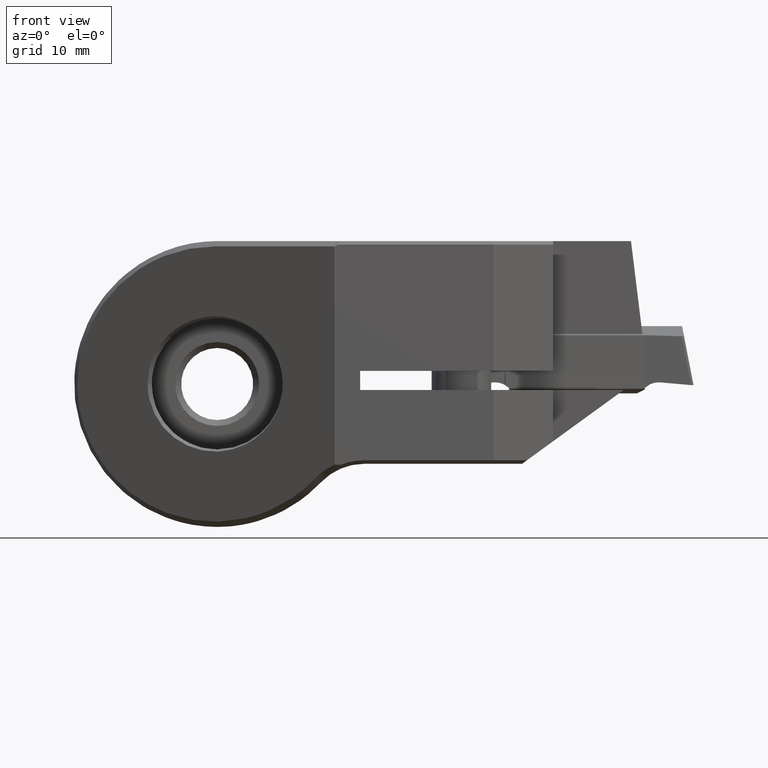
[diagram: clean part render]
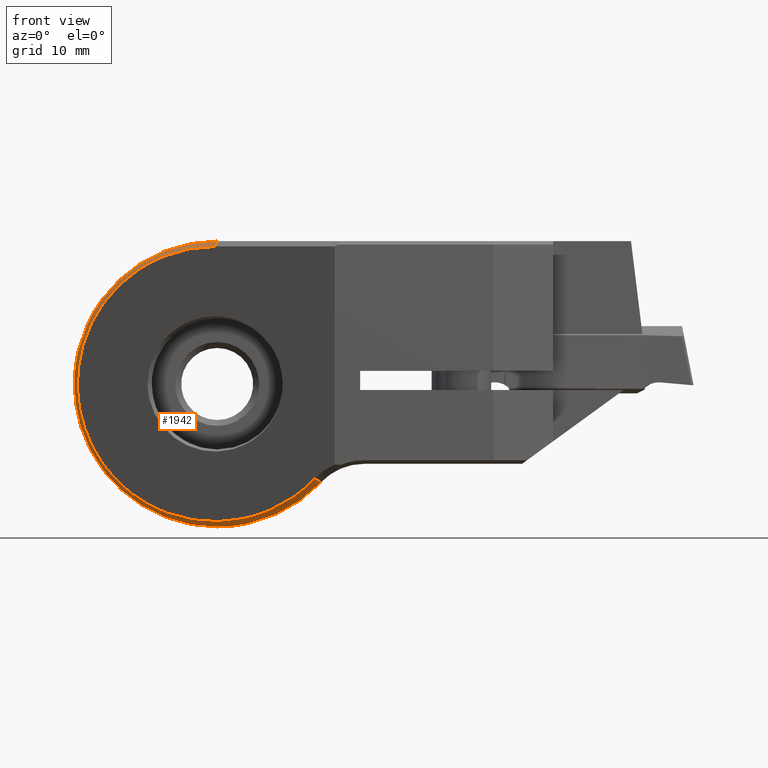
[diagram: same view with one face highlighted and labeled with its STEP entity id]
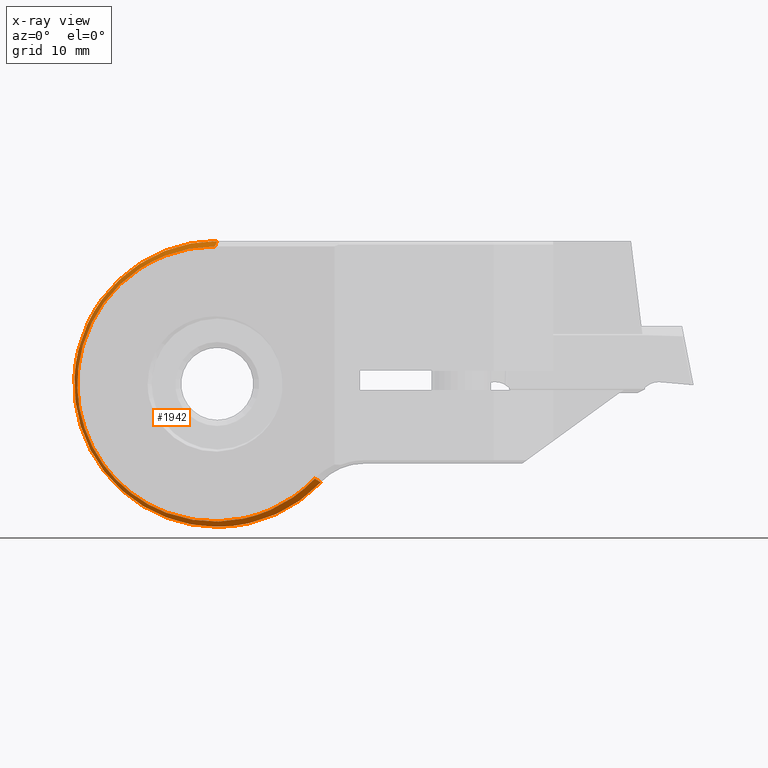
[diagram: x-ray of the same camera — body ghosted, the highlighted face saturated]
A machine part, front view. The second image highlights one B-rep face of the part: STEP entity #1942.
The next image is the same camera in x-ray: the body ghosted, the highlighted face saturated — about 0% of this face is hidden behind the body in this view.
In plain terms, the highlighted face is a freeform B-spline surface patch.
Its self-contained STEP definition (entity closure, byte-faithful):
#838=EDGE_CURVE('NONE',#1914,#1554,#2387,.T.);
#1190=VERTEX_POINT('NONE',#2775);
#1314=VERTEX_POINT('NONE',#2906);
#1554=VERTEX_POINT('NONE',#3178);
#1628=EDGE_CURVE('NONE',#2036,#1914,#3254,.T.);
#1754=EDGE_CURVE('NONE',#1190,#2036,#3388,.T.);
#1760=EDGE_CURVE('NONE',#2284,#1314,#3394,.T.);
#1914=VERTEX_POINT('',#3567);
#1942=ADVANCED_FACE('NONE',(#3598),#3599,.T.);
#2036=VERTEX_POINT('NONE',#3703);
#2142=EDGE_CURVE('NONE',#1314,#1190,#3822,.T.);
#2150=EDGE_CURVE('NONE',#2284,#1554,#3830,.F.);
#2284=VERTEX_POINT('NONE',#3980);
#2387=B_SPLINE_CURVE_WITH_KNOTS('',3,(#4120,#4121,#4122,#4123,#4124,#4125,#4126,#4127,#4128,#4129,#4130,#4131,#4132,#4133,#4134,#4135,#4136,#4137,#4138,#4139,#4140,#4141,#4142,#4143,#4144,#4145,#4146,#4147,#4148,#4149,#4150,#4151,#4152,#4153,#4154,#4155,#4156,#4157,#4158,#4159),.UNSPECIFIED.,.F.,.F.,(4,2,2,2,2,2,2,2,2,2,2,2,2,2,2,2,2,2,2,4),(-51.1107395327613,-46.6343419368662,-42.4507812472294,-38.263184287832,-32.279166348962,-30.0434360503467,-24.5468840983179,-22.4867814567998,-18.7622350558625,-15.9694199907063,-10.3311747622469,-8.94288867909548,-2.8554343392998,-0.548687361915619,-0.490720992001181,-0.428060672749908,-0.325750287488978,-0.25136645756349,-0.139472428338021,-0.0),.UNSPECIFIED.);
#2775=CARTESIAN_POINT('',(8.70585055638072,-21.0226959589248,-8.25882352941177));
#2906=CARTESIAN_POINT('',(8.19215865515161,-21.4282012415692,-7.95088945727988));
#3178=CARTESIAN_POINT('',(0.0,-17.1144554241358,12.0));
#3254=B_SPLINE_CURVE_WITH_KNOTS('',3,(#5647,#5648,#5649,#5650,#5651,#5652,#5653,#5654,#5655,#5656,#5657,#5658,#5659,#5660,#5661,#5662,#5663,#5664,#5665,#5666,#5667,#5668,#5669,#5670,#5671,#5672,#5673,#5674,#5675,#5676,#5677,#5678,#5679,#5680,#5681,#5682,#5683,#5684,#5685,#5686),.UNSPECIFIED.,.F.,.F.,(4,2,2,2,2,2,2,2,2,2,2,2,2,2,2,2,2,2,2,4),(-51.1107395327613,-46.6343419368662,-42.4507812472294,-38.263184287832,-32.279166348962,-30.0434360503467,-24.5468840983179,-22.4867814567998,-18.7622350558625,-15.9694199907063,-10.3311747622469,-8.94288867909548,-2.8554343392998,-0.548687361915619,-0.490720992001181,-0.428060672749908,-0.325750287488978,-0.25136645756349,-0.139472428338021,-0.0),.UNSPECIFIED.);
#3388=B_SPLINE_CURVE_WITH_KNOTS('',3,(#5917,#5918,#5919,#5920,#5921,#5922,#5923,#5924,#5925,#5926,#5927,#5928,#5929,#5930,#5931,#5932,#5933,#5934,#5935,#5936,#5937,#5938,#5939,#5940,#5941,#5942),.UNSPECIFIED.,.F.,.F.,(4,2,2,2,2,2,2,2,2,2,2,2,4),(-12.2684422680615,-12.1450642113202,-11.9696358276408,-11.8871228371023,-11.7908012352102,-11.5960268058757,-11.2848208732924,-10.5858842707867,-9.06837693916272,-8.06810803531795,-5.38891703570082,-2.6467959772772,-0.0),.UNSPECIFIED.);
#3394=B_SPLINE_CURVE_WITH_KNOTS('',3,(#5953,#5954,#5955,#5956,#5957,#5958,#5959,#5960,#5961,#5962,#5963,#5964,#5965,#5966,#5967,#5968,#5969,#5970,#5971,#5972,#5973,#5974,#5975),.UNSPECIFIED.,.F.,.F.,(4,1,2,2,2,2,2,2,2,2,2,4),(0.0,0.0624999999999999,0.09375,0.125,0.25,0.375,0.5,0.625,0.75,0.8125,0.875,1.0),.UNSPECIFIED.);
#3567=CARTESIAN_POINT('',(-2.78318275323868E-013,-17.1147971543016,-12.0));
#3598=FACE_OUTER_BOUND('',#6263,.T.);
#3599=B_SPLINE_SURFACE_WITH_KNOTS('',1,3,((#6264,#6265,#6266,#6267,#6268,#6269,#6270,#6271,#6272,#6273,#6274,#6275,#6276,#6277,#6278,#6279,#6280,#6281,#6282,#6283,#6284,#6285,#6286,#6287),(#6288,#6289,#6290,#6291,#6292,#6293,#6294,#6295,#6296,#6297,#6298,#6299,#6300,#6301,#6302,#6303,#6304,#6305,#6306,#6307,#6308,#6309,#6310,#6311),(#6312,#6313,#6314,#6315,#6316,#6317,#6318,#6319,#6320,#6321,#6322,#6323,#6324,#6325,#6326,#6327,#6328,#6329,#6330,#6331,#6332,#6333,#6334,#6335)),.UNSPECIFIED.,.F.,.F.,.F.,(2,1,2),(4,3,2,2,2,2,2,2,2,3,4),(-0.142235075234763,0.0,1.0),(3.86111309779303,3.90064644963641,4.39481334767867,4.88898024572093,5.38314714376319,5.87731404180544,6.3714809398477,6.86564783788996,7.35981473593222,7.85398163397448,7.89351498581786),.UNSPECIFIED.);
#3703=CARTESIAN_POINT('',(0.000127132625230869,-17.1148540818176,-11.9999999993266));
#3822=B_SPLINE_CURVE_WITH_KNOTS('',1,(#6734,#6735),.UNSPECIFIED.,.F.,.F.,(2,2),(3.41393580072236E-015,1.00000000000001),.UNSPECIFIED.);
#3830=B_SPLINE_CURVE_WITH_KNOTS('',1,(#6747,#6748),.UNSPECIFIED.,.F.,.F.,(2,2),(2.74780198594726E-015,1.0),.UNSPECIFIED.);
#3980=CARTESIAN_POINT('',(-0.189090218719426,-17.5199607067802,11.5525744251075));
#4120=CARTESIAN_POINT('',(1.67317886542639,-17.8648540818176,-11.8827805030763));
#4121=CARTESIAN_POINT('',(0.60791521709089,-17.3866432334027,-12.0327770987418));
#4122=CARTESIAN_POINT('',(-0.472663882641415,-16.9037669192122,-12.03887021179));
#4123=CARTESIAN_POINT('',(-2.5370940932108,-15.9776749332199,-11.771764214386));
#4124=CARTESIAN_POINT('',(-3.5196883202289,-15.5336469013866,-11.5171405152281));
#4125=CARTESIAN_POINT('',(-5.40726804069047,-14.6847557078922,-10.7608632349182));
#4126=CARTESIAN_POINT('',(-6.30827346872618,-14.2818293955087,-10.2606549354934));
#4127=CARTESIAN_POINT('',(-8.33247774144306,-13.3745462164915,-8.76160309023047));
#4128=CARTESIAN_POINT('',(-9.37198452895437,-12.9043929519191,-7.65002585506647));
#4129=CARTESIAN_POINT('',(-10.4874064357695,-12.4055164180473,-5.86031718227874));
#4130=CARTESIAN_POINT('',(-10.7571062443139,-12.2852696908241,-5.3498718678732));
#4131=CARTESIAN_POINT('',(-11.5626708495358,-11.9239336929206,-3.51259323059222));
#4132=CARTESIAN_POINT('',(-11.9023215892027,-11.7685540900949,-2.10636342081118));
#4133=CARTESIAN_POINT('',(-12.0117356565118,-11.7212966543418,-0.116134718561009));
#4134=CARTESIAN_POINT('',(-12.0046766299932,-11.725212648334,0.427521612539464));
#4135=CARTESIAN_POINT('',(-11.8815272753057,-11.7807286759043,1.94773702907781));
#4136=CARTESIAN_POINT('',(-11.6830733050267,-11.8678076682886,2.90760589723396));
#4137=CARTESIAN_POINT('',(-11.1391184659755,-12.1118076393341,4.52252949042691));
#4138=CARTESIAN_POINT('',(-10.845107154128,-12.2446283085182,5.18681136631241));
#4139=CARTESIAN_POINT('',(-9.79046987814872,-12.7201698232361,7.08967327614993));
#4140=CARTESIAN_POINT('',(-8.82144983387422,-13.151606914507,8.292207594673));
#4141=CARTESIAN_POINT('',(-7.26949305856204,-13.8495061711559,9.55566899606728));
#4142=CARTESIAN_POINT('',(-6.95205037667618,-13.9924387505807,9.78890685485003));
#4143=CARTESIAN_POINT('',(-5.19183390659383,-14.7847584958933,10.9544556959212));
#4144=CARTESIAN_POINT('',(-3.58841057142052,-15.5016793502419,11.574004337243));
#4145=CARTESIAN_POINT('',(-1.29705423676789,-16.5321919076733,11.9467412586936));
#4146=CARTESIAN_POINT('',(-0.660697915006315,-16.818576673568,11.9987157233126));
#4147=CARTESIAN_POINT('',(-0.0077469115488665,-17.1109868333584,12.0000081738703));
#4148=CARTESIAN_POINT('',(0.00900119487446541,-17.1184753945949,12.0000095585553));
#4149=CARTESIAN_POINT('',(0.0456657085058819,-17.1349818027315,11.9999282239731));
#4150=CARTESIAN_POINT('',(0.0646925049475257,-17.1435974565768,11.9998406737465));
#4151=CARTESIAN_POINT('',(0.114735921870256,-17.1663891066513,11.9994916109906));
#4152=CARTESIAN_POINT('',(0.14572019097188,-17.1806334396734,11.9991550804972));
#4153=CARTESIAN_POINT('',(0.19914168476607,-17.2054226943172,11.9983685748938));
#4154=CARTESIAN_POINT('',(0.221602942630407,-17.2159159084314,11.9979746454178));
#4155=CARTESIAN_POINT('',(0.277781910500246,-17.2423376811023,11.9968319342571));
#4156=CARTESIAN_POINT('',(0.311463188188248,-17.2583383097533,11.9960044038384));
#4157=CARTESIAN_POINT('',(0.386980613931078,-17.2945731465951,11.9938318806906));
#4158=CARTESIAN_POINT('',(0.428778642029004,-17.3148778488456,11.9924096780405));
#4159=CARTESIAN_POINT('',(0.47047197118032,-17.3353811545105,11.9907737917256));
#5647=CARTESIAN_POINT('',(1.67317886542639,-17.8648540818176,-11.8827805030763));
#5648=CARTESIAN_POINT('',(0.60791521709089,-17.3866432334027,-12.0327770987418));
#5649=CARTESIAN_POINT('',(-0.472663882641415,-16.9037669192122,-12.03887021179));
#5650=CARTESIAN_POINT('',(-2.5370940932108,-15.9776749332199,-11.771764214386));
#5651=CARTESIAN_POINT('',(-3.5196883202289,-15.5336469013866,-11.5171405152281));
#5652=CARTESIAN_POINT('',(-5.40726804069047,-14.6847557078922,-10.7608632349182));
#5653=CARTESIAN_POINT('',(-6.30827346872618,-14.2818293955087,-10.2606549354934));
#5654=CARTESIAN_POINT('',(-8.33247774144306,-13.3745462164915,-8.76160309023047));
#5655=CARTESIAN_POINT('',(-9.37198452895437,-12.9043929519191,-7.65002585506647));
#5656=CARTESIAN_POINT('',(-10.4874064357695,-12.4055164180473,-5.86031718227874));
#5657=CARTESIAN_POINT('',(-10.7571062443139,-12.2852696908241,-5.3498718678732));
#5658=CARTESIAN_POINT('',(-11.5626708495358,-11.9239336929206,-3.51259323059222));
#5659=CARTESIAN_POINT('',(-11.9023215892027,-11.7685540900949,-2.10636342081118));
#5660=CARTESIAN_POINT('',(-12.0117356565118,-11.7212966543418,-0.116134718561009));
#5661=CARTESIAN_POINT('',(-12.0046766299932,-11.725212648334,0.427521612539464));
#5662=CARTESIAN_POINT('',(-11.8815272753057,-11.7807286759043,1.94773702907781));
#5663=CARTESIAN_POINT('',(-11.6830733050267,-11.8678076682886,2.90760589723396));
#5664=CARTESIAN_POINT('',(-11.1391184659755,-12.1118076393341,4.52252949042691));
#5665=CARTESIAN_POINT('',(-10.845107154128,-12.2446283085182,5.18681136631241));
#5666=CARTESIAN_POINT('',(-9.79046987814872,-12.7201698232361,7.08967327614993));
#5667=CARTESIAN_POINT('',(-8.82144983387422,-13.151606914507,8.292207594673));
#5668=CARTESIAN_POINT('',(-7.26949305856204,-13.8495061711559,9.55566899606728));
#5669=CARTESIAN_POINT('',(-6.95205037667618,-13.9924387505807,9.78890685485003));
#5670=CARTESIAN_POINT('',(-5.19183390659383,-14.7847584958933,10.9544556959212));
#5671=CARTESIAN_POINT('',(-3.58841057142052,-15.5016793502419,11.574004337243));
#5672=CARTESIAN_POINT('',(-1.29705423676789,-16.5321919076733,11.9467412586936));
#5673=CARTESIAN_POINT('',(-0.660697915006315,-16.818576673568,11.9987157233126));
#5674=CARTESIAN_POINT('',(-0.0077469115488665,-17.1109868333584,12.0000081738703));
#5675=CARTESIAN_POINT('',(0.00900119487446541,-17.1184753945949,12.0000095585553));
#5676=CARTESIAN_POINT('',(0.0456657085058819,-17.1349818027315,11.9999282239731));
#5677=CARTESIAN_POINT('',(0.0646925049475257,-17.1435974565768,11.9998406737465));
#5678=CARTESIAN_POINT('',(0.114735921870256,-17.1663891066513,11.9994916109906));
#5679=CARTESIAN_POINT('',(0.14572019097188,-17.1806334396734,11.9991550804972));
#5680=CARTESIAN_POINT('',(0.19914168476607,-17.2054226943172,11.9983685748938));
#5681=CARTESIAN_POINT('',(0.221602942630407,-17.2159159084314,11.9979746454178));
#5682=CARTESIAN_POINT('',(0.277781910500246,-17.2423376811023,11.9968319342571));
#5683=CARTESIAN_POINT('',(0.311463188188248,-17.2583383097533,11.9960044038384));
#5684=CARTESIAN_POINT('',(0.386980613931078,-17.2945731465951,11.9938318806906));
#5685=CARTESIAN_POINT('',(0.428778642029004,-17.3148778488456,11.9924096780405));
#5686=CARTESIAN_POINT('',(0.47047197118032,-17.3353811545105,11.9907737917256));
#5917=CARTESIAN_POINT('',(9.02414568741277,-21.1752416038013,-7.90979105996799));
#5918=CARTESIAN_POINT('',(8.99522420958436,-21.1604063527997,-7.94278708065174));
#5919=CARTESIAN_POINT('',(8.96608498487648,-21.1457392451219,-7.97566643625527));
#5920=CARTESIAN_POINT('',(8.89498573531549,-21.1106249375413,-8.05500719681153));
#5921=CARTESIAN_POINT('',(8.85280626244477,-21.0903512602458,-8.10134317150246));
#5922=CARTESIAN_POINT('',(8.79014442520631,-21.061044869521,-8.16910231362982));
#5923=CARTESIAN_POINT('',(8.77000334923653,-21.051746013319,-8.19072131788261));
#5924=CARTESIAN_POINT('',(8.7261421946221,-21.0317568349965,-8.23745312720663));
#5925=CARTESIAN_POINT('',(8.70618485368654,-21.022846674365,-8.25852795334378));
#5926=CARTESIAN_POINT('',(8.64229185312028,-20.9942627408545,-8.32554080596899));
#5927=CARTESIAN_POINT('',(8.59922663335412,-20.9749820306862,-8.37001360331007));
#5928=CARTESIAN_POINT('',(8.48655232987617,-20.9245042744274,-8.48458590350995));
#5929=CARTESIAN_POINT('',(8.41646623241893,-20.8930743355085,-8.55411114808566));
#5930=CARTESIAN_POINT('',(8.18650227085089,-20.7898704372714,-8.7766859191353));
#5931=CARTESIAN_POINT('',(8.02355886019871,-20.7166268979833,-8.92586300542581));
#5932=CARTESIAN_POINT('',(7.49554878525037,-20.4791477178541,-9.38325655829938));
#5933=CARTESIAN_POINT('',(7.11740203903634,-20.3089008445304,-9.67299060520621));
#5934=CARTESIAN_POINT('',(6.46682791415422,-20.0164250578397,-10.1132353788373));
#5935=CARTESIAN_POINT('',(6.20238234524796,-19.8976368690828,-10.2774853559515));
#5936=CARTESIAN_POINT('',(5.21038298804307,-19.4524471678354,-10.841699162929));
#5937=CARTESIAN_POINT('',(4.45198512185068,-19.1131160695928,-11.1737860403407));
#5938=CARTESIAN_POINT('',(2.87076603987302,-18.4031235970118,-11.6817972401206));
#5939=CARTESIAN_POINT('',(2.04879754563794,-18.0332547987479,-11.8532256793247));
#5940=CARTESIAN_POINT('',(0.417120361225588,-17.301365217998,-12.0197735168981));
#5941=CARTESIAN_POINT('',(-0.390660457920264,-16.9401001495536,-12.0206767994961));
#5942=CARTESIAN_POINT('',(-1.19245521778436,-16.5807872027933,-11.9406051167258));
#5953=CARTESIAN_POINT('',(-0.189090218719426,-17.5199607067802,11.5525744251075));
#5954=CARTESIAN_POINT('',(-1.15865268069903,-17.0678463056995,11.5534416155385));
#5955=CARTESIAN_POINT('',(-2.57074544813285,-16.4093766342198,11.3813292568176));
#5956=CARTESIAN_POINT('',(-3.91946182726329,-15.7804598579522,10.9490971815457));
#5957=CARTESIAN_POINT('',(-4.80452243817172,-15.3677493171542,10.6031380832421));
#5958=CARTESIAN_POINT('',(-5.24100875176121,-15.1642124064476,10.4007188600964));
#5959=CARTESIAN_POINT('',(-7.37825292451694,-14.1675990813444,9.24948662338826));
#5960=CARTESIAN_POINT('',(-8.76834710187147,-13.5193875208873,7.97661913822175));
#5961=CARTESIAN_POINT('',(-10.9051878083637,-12.5229623351927,4.73310938601232));
#5962=CARTESIAN_POINT('',(-11.5252580063536,-12.2338188532763,2.95320189548876));
#5963=CARTESIAN_POINT('',(-11.868064537307,-12.0739655426272,-0.915767915942976));
#5964=CARTESIAN_POINT('',(-11.5697448683749,-12.2130742888285,-2.77683296048296));
#5965=CARTESIAN_POINT('',(-10.0364933251883,-12.9280412252944,-6.3455278794115));
#5966=CARTESIAN_POINT('',(-8.89116324103931,-13.4621174146484,-7.84245029683228));
#5967=CARTESIAN_POINT('',(-5.84871731433301,-14.880833249794,-10.2569826532118));
#5968=CARTESIAN_POINT('',(-4.13042188142674,-15.682087569131,-11.0315912844495));
#5969=CARTESIAN_POINT('',(-1.26267003637321,-17.0193422161675,-11.5435716990839));
#5970=CARTESIAN_POINT('',(-0.314965215228681,-17.4612642319377,-11.5957333764048));
#5971=CARTESIAN_POINT('',(1.56401950598044,-18.3374491969937,-11.4630598092659));
#5972=CARTESIAN_POINT('',(2.49397926830137,-18.77109655594,-11.2786583817257));
#5973=CARTESIAN_POINT('',(5.26714200010612,-20.0642435750906,-10.3673558149151));
#5974=CARTESIAN_POINT('',(6.85840593663346,-20.8062621348391,-9.35935534752324));
#5975=CARTESIAN_POINT('',(8.19215865515161,-21.4282012415692,-7.95088945727988));
#6263=EDGE_LOOP('',(#8438,#8439,#8440,#8441,#8442,#8443));
#6264=CARTESIAN_POINT('',(9.10685525308987,-21.1114613226563,-7.95620391331127));
#6265=CARTESIAN_POINT('',(8.99754202292642,-21.0626471766175,-8.07167679398377));
#6266=CARTESIAN_POINT('',(8.88822879276298,-21.0138330305786,-8.18714967465628));
#6267=CARTESIAN_POINT('',(8.77891556259953,-20.9650188845398,-8.30262255532879));
#6268=CARTESIAN_POINT('',(7.41250018555646,-20.3548420590542,-9.74603356373513));
#6269=CARTESIAN_POINT('',(5.6821436225498,-19.5821462212613,-10.8397459536301));
#6270=CARTESIAN_POINT('',(1.90573589770293,-17.8957801893268,-12.0810547647239));
#6271=CARTESIAN_POINT('',(-0.135952516691812,-16.9847356485488,-12.2281678174664));
#6272=CARTESIAN_POINT('',(-4.04906550832436,-15.2366460201879,-11.5268586390328));
#6273=CARTESIAN_POINT('',(-5.91464046511957,-14.4035680089817,-10.6855079415913));
#6274=CARTESIAN_POINT('',(-9.0286050004859,-13.0130179414018,-8.21461147990394));
#6275=CARTESIAN_POINT('',(-10.271938873543,-12.4578035253251,-6.5890775521054));
#6276=CARTESIAN_POINT('',(-11.8414195845907,-11.7569472747389,-2.93684018000548));
#6277=CARTESIAN_POINT('',(-12.1650179751662,-11.6124434569244,-0.916067384523941));
#6278=CARTESIAN_POINT('',(-11.8144822414607,-11.7689762249202,3.04363379133416));
#6279=CARTESIAN_POINT('',(-11.1409173245869,-12.0697586294927,4.97613196197457));
#6280=CARTESIAN_POINT('',(-8.95423852123089,-13.0462265125285,8.29585217066774));
#6281=CARTESIAN_POINT('',(-7.44467511646866,-13.720326512899,9.67768374246512));
#6282=CARTESIAN_POINT('',(-3.94506387748865,-15.283088255896,11.5631080220768));
#6283=CARTESIAN_POINT('',(-1.96069673830542,-16.1692132672957,12.0657286710035));
#6284=CARTESIAN_POINT('',(0.0268952614856757,-17.0567783497507,12.0636396103068));
#6285=CARTESIAN_POINT('',(0.185902621468963,-17.1277835563471,12.0634724854511));
#6286=CARTESIAN_POINT('',(0.34490998145225,-17.1987887629435,12.0633053605953));
#6287=CARTESIAN_POINT('',(0.503917341435537,-17.2697939695399,12.0631382357396));
#6288=CARTESIAN_POINT('',(9.03206025867669,-21.1691383970413,-7.9142323580493));
#6289=CARTESIAN_POINT('',(8.9233236912447,-21.1203242510025,-8.02909608183679));
#6290=CARTESIAN_POINT('',(8.81458712381271,-21.0715101049636,-8.14395980562428));
#6291=CARTESIAN_POINT('',(8.70585055638072,-21.0226959589248,-8.25882352941177));
#6292=CARTESIAN_POINT('',(7.34664346348084,-20.4125191334392,-9.69462007675538));
#6293=CARTESIAN_POINT('',(5.62541509104344,-19.639823295023,-10.7825627796192));
#6294=CARTESIAN_POINT('',(1.86892914401918,-17.9534572643351,-12.017323283394));
#6295=CARTESIAN_POINT('',(-0.161958687554484,-17.0423423604197,-12.163306232561));
#6296=CARTESIAN_POINT('',(-4.05445875368367,-15.294323095289,-11.4660507226611));
#6297=CARTESIAN_POINT('',(-5.91019219969781,-14.4612450831515,-10.6291384223008));
#6298=CARTESIAN_POINT('',(-9.00772956158946,-13.070695016002,-8.1712767413096));
#6299=CARTESIAN_POINT('',(-10.2445044452459,-12.5154805999709,-6.55431803295328));
#6300=CARTESIAN_POINT('',(-11.8057056377869,-11.8146243488631,-2.92134739455724));
#6301=CARTESIAN_POINT('',(-12.1275969415805,-11.6701205312137,-0.911234834362411));
#6302=CARTESIAN_POINT('',(-11.7789103971153,-11.8266532994009,3.02757763856139));
#6303=CARTESIAN_POINT('',(-11.1088987541292,-12.1274357037095,4.94988125193202));
#6304=CARTESIAN_POINT('',(-8.9337553897243,-13.1039035870817,8.25208886126978));
#6305=CARTESIAN_POINT('',(-7.43215542077753,-13.7780035877272,9.62663082346275));
#6306=CARTESIAN_POINT('',(-3.95100576764366,-15.3407653298379,11.5021088776747));
#6307=CARTESIAN_POINT('',(-1.97710680756046,-16.2268903416807,12.0020780402242));
#6308=CARTESIAN_POINT('',(-3.4604569981875E-014,-17.1144554241357,12.0));
#6309=CARTESIAN_POINT('',(0.158168544604799,-17.1854606307321,11.9998337567821));
#6310=CARTESIAN_POINT('',(0.316337089209633,-17.2564658373286,11.9996675135641));
#6311=CARTESIAN_POINT('',(0.474505633814466,-17.327471043925,11.9995012703462));
#6312=CARTESIAN_POINT('',(8.50620547714881,-21.5746436796857,-7.6191465278299));
#6313=CARTESIAN_POINT('',(8.40152320314974,-21.5258295336469,-7.72972750431322));
#6314=CARTESIAN_POINT('',(8.29684092915067,-21.477015387608,-7.84030848079655));
#6315=CARTESIAN_POINT('',(8.19215865515161,-21.4282012415692,-7.95088945727988));
#6316=CARTESIAN_POINT('',(6.88363023016328,-20.8180244160836,-9.3331516633215));
#6317=CARTESIAN_POINT('',(5.22657864783325,-20.0453285732853,-10.3805299201677));
#6318=CARTESIAN_POINT('',(1.61015504330599,-18.3589625513617,-11.5692517987433));
#6319=CARTESIAN_POINT('',(-0.344798052737423,-17.4473529513428,-11.7072894251849));
#6320=CARTESIAN_POINT('',(-4.09237658337803,-15.6998283829679,-11.03853369656));
#6321=CARTESIAN_POINT('',(-5.87891815977186,-14.8667503642831,-10.2328260556257));
#6322=CARTESIAN_POINT('',(-8.86096239560047,-13.4762003001592,-7.86660689441834));
#6323=CARTESIAN_POINT('',(-10.0516235524578,-12.920985884449,-6.30993724927703));
#6324=CARTESIAN_POINT('',(-11.5546146411054,-12.2201296296739,-2.81242359061743));
#6325=CARTESIAN_POINT('',(-11.8645040756051,-12.0756258131853,-0.877259036525249));
#6326=CARTESIAN_POINT('',(-11.5288184680555,-12.2321585827181,2.91469301607104));
#6327=CARTESIAN_POINT('',(-10.8837885244277,-12.5329409851711,4.76532262601488));
#6328=CARTESIAN_POINT('',(-8.78974638580747,-13.509408870909,7.9444058982192));
#6329=CARTESIAN_POINT('',(-7.34413426516268,-14.1835088734873,9.2676974245237));
#6330=CARTESIAN_POINT('',(-3.99278090746204,-15.7462706093666,11.0732474009858));
#6331=CARTESIAN_POINT('',(-2.09247968044681,-16.6323956243251,11.5545749846366));
#6332=CARTESIAN_POINT('',(-0.189090218719425,-17.5199607067802,11.5525744251075));
#6333=CARTESIAN_POINT('',(-0.0368190617812343,-17.5909659133766,11.5524143803452));
#6334=CARTESIAN_POINT('',(0.115452095156956,-17.661971119973,11.5522543355829));
#6335=CARTESIAN_POINT('',(0.267723252095146,-17.7329763265694,11.5520942908205));
#6734=CARTESIAN_POINT('',(8.19215865515161,-21.4282012415692,-7.95088945727988));
#6735=CARTESIAN_POINT('',(8.70585055638073,-21.0226959589248,-8.25882352941177));
#6747=CARTESIAN_POINT('',(-3.51246809415784E-014,-17.1144554241358,12.0));
#6748=CARTESIAN_POINT('',(-0.189090218719425,-17.5199607067802,11.5525744251075));
#8438=ORIENTED_EDGE('',*,*,#2150,.T.);
#8439=ORIENTED_EDGE('',*,*,#838,.F.);
#8440=ORIENTED_EDGE('',*,*,#1628,.F.);
#8441=ORIENTED_EDGE('',*,*,#1754,.F.);
#8442=ORIENTED_EDGE('',*,*,#2142,.F.);
#8443=ORIENTED_EDGE('',*,*,#1760,.F.);